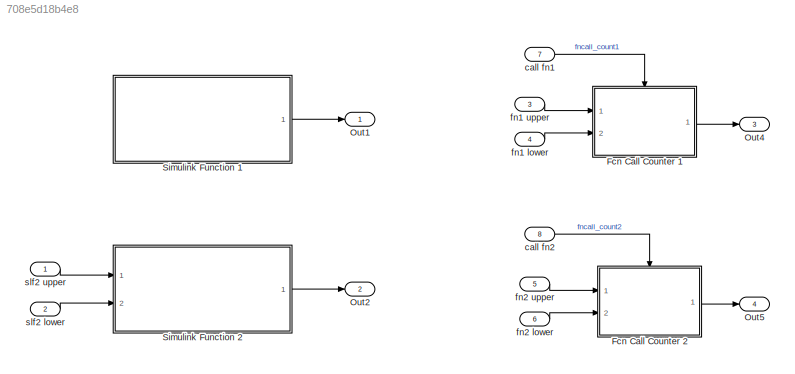
MODEL slx_708e5d18b4e8
KIND model
CONFIG AbsTol = auto
CONFIG FixedStep = 0.1
CONFIG MaxStep = auto
CONFIG MinStep = auto
CONFIG RelTol = 1e-3
CONFIG SampleTimeConstraint = Unconstrained
CONFIG Solver = FixedStepAuto
CONFIG SolverMode = Auto
CONFIG SolverName = FixedStepAuto
CONFIG StartTime = 0.0
CONFIG StopTime = 15
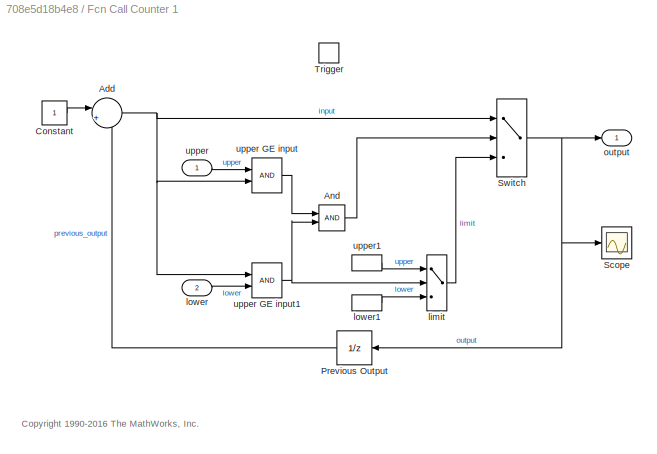
BLOCK [SubSystem] Fcn Call Counter 1
  Ports = [2, 1, 0, 1]
  RequestExecContextInheritance = off
  Variant = off
BLOCK [Switch] Fcn Call Counter 1/ limit
  Threshold = 0.5
BLOCK [Sum] Fcn Call Counter 1/Add
  IconShape = round
  InputSameDT = off
  Inputs = |++
  OutDataTypeStr = Inherit: Inherit via internal rule
  Ports = [2, 1]
  SaturateOnIntegerOverflow = off
BLOCK [Logic] Fcn Call Counter 1/And
  AttributesFormatString = %<Operator>
  IconShape = distinctive
  OutDataTypeStr = boolean
  Ports = [2, 1]
BLOCK [Constant] Fcn Call Counter 1/Constant
BLOCK [UnitDelay] Fcn Call Counter 1/Previous Output
  SampleTime = -1
BLOCK [Scope] Fcn Call Counter 1/Scope
  Ports = [1]
  ScopeSpecificationString = Simulink.scopes.TimeScopeBlockCfg('CurrentConfiguration', extmgr.ConfigurationSet(extmgr.Configuration('Core','General UI',true,'FigureColor',[0.156862745098039 0.156862745098039 0.156862745098039]),extmgr.Configuration('Core','Source UI',true),extmgr.Configuration('Sources','WiredSimulink',true,'DataLoggingSaveFormat','StructureWithTime','DataLoggingLimitDataPoints',true,'DataLoggingDecimation','...<+2784ch>
BLOCK [Switch] Fcn Call Counter 1/Switch
  Threshold = 0.5
BLOCK [TriggerPort] Fcn Call Counter 1/Trigger
  PortDimensions = 1
  Ports = []
  StatesWhenEnabling = held
  TriggerType = function-call
  VariantControl = Variant
BLOCK [Inport] Fcn Call Counter 1/lower
  IconDisplay = Port number
  Port = 2
BLOCK [InportShadow] Fcn Call Counter 1/lower1
  IconDisplay = Port number
  Port = 2
BLOCK [Outport] Fcn Call Counter 1/output
  IconDisplay = Port number
BLOCK [Inport] Fcn Call Counter 1/upper
  IconDisplay = Port number
BLOCK [RelationalOperator] Fcn Call Counter 1/upper GE input
  AttributesFormatString = \n
  OutDataTypeStr = boolean
  Ports = [2, 1]
  Priority = 0
BLOCK [RelationalOperator] Fcn Call Counter 1/upper GE input1
  AttributesFormatString = \n
  OutDataTypeStr = boolean
  Ports = [2, 1]
  Priority = 0
BLOCK [InportShadow] Fcn Call Counter 1/upper1
  IconDisplay = Port number
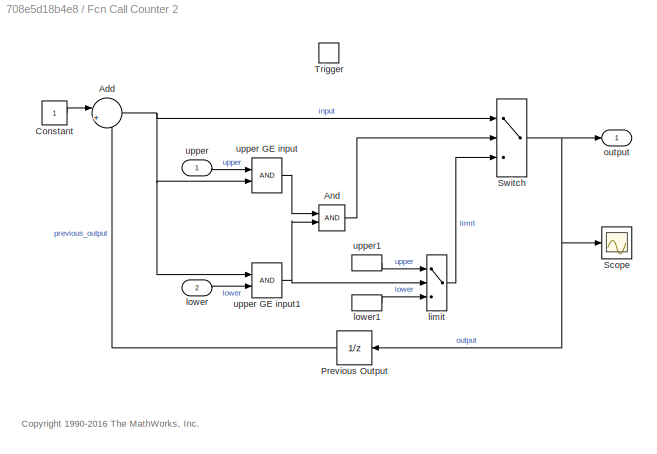
BLOCK [SubSystem] Fcn Call Counter 2
  Ports = [2, 1, 0, 1]
  RequestExecContextInheritance = off
  Variant = off
BLOCK [Switch] Fcn Call Counter 2/ limit
  Threshold = 0.5
BLOCK [Sum] Fcn Call Counter 2/Add
  IconShape = round
  InputSameDT = off
  Inputs = |++
  OutDataTypeStr = Inherit: Inherit via internal rule
  Ports = [2, 1]
  SaturateOnIntegerOverflow = off
BLOCK [Logic] Fcn Call Counter 2/And
  AttributesFormatString = %<Operator>
  IconShape = distinctive
  OutDataTypeStr = boolean
  Ports = [2, 1]
BLOCK [Constant] Fcn Call Counter 2/Constant
BLOCK [UnitDelay] Fcn Call Counter 2/Previous Output
  SampleTime = -1
BLOCK [Scope] Fcn Call Counter 2/Scope
  Ports = [1]
  ScopeSpecificationString = Simulink.scopes.TimeScopeBlockCfg('CurrentConfiguration', extmgr.ConfigurationSet(extmgr.Configuration('Core','General UI',true,'FigureColor',[0.156862745098039 0.156862745098039 0.156862745098039]),extmgr.Configuration('Core','Source UI',true),extmgr.Configuration('Sources','WiredSimulink',true,'DataLoggingSaveFormat','StructureWithTime','DataLoggingLimitDataPoints',true,'DataLoggingDecimation','...<+2823ch>
BLOCK [Switch] Fcn Call Counter 2/Switch
  Threshold = 0.5
BLOCK [TriggerPort] Fcn Call Counter 2/Trigger
  PortDimensions = 1
  Ports = []
  StatesWhenEnabling = held
  TriggerType = function-call
  VariantControl = Variant
BLOCK [Inport] Fcn Call Counter 2/lower
  IconDisplay = Port number
  Port = 2
BLOCK [InportShadow] Fcn Call Counter 2/lower1
  IconDisplay = Port number
  Port = 2
BLOCK [Outport] Fcn Call Counter 2/output
  IconDisplay = Port number
BLOCK [Inport] Fcn Call Counter 2/upper
  IconDisplay = Port number
BLOCK [RelationalOperator] Fcn Call Counter 2/upper GE input
  AttributesFormatString = \n
  OutDataTypeStr = boolean
  Ports = [2, 1]
  Priority = 0
BLOCK [RelationalOperator] Fcn Call Counter 2/upper GE input1
  AttributesFormatString = \n
  OutDataTypeStr = boolean
  Ports = [2, 1]
  Priority = 0
BLOCK [InportShadow] Fcn Call Counter 2/upper1
  IconDisplay = Port number
BLOCK [Outport] Out1
  IconDisplay = Port number
BLOCK [Outport] Out2
  IconDisplay = Port number
  Port = 2
BLOCK [Outport] Out4
  IconDisplay = Port number
  Port = 3
BLOCK [Outport] Out5
  IconDisplay = Port number
  Port = 4
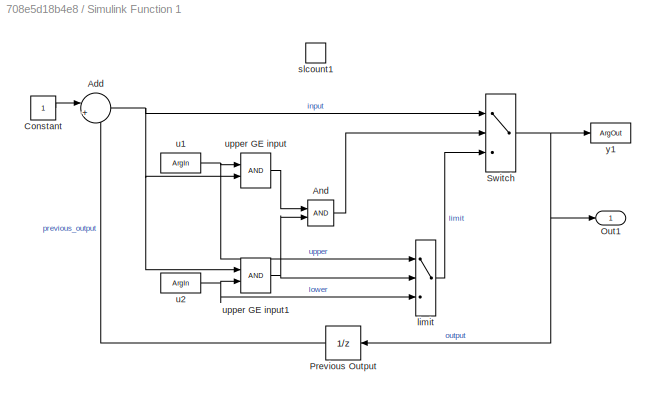
BLOCK [SubSystem] Simulink Function 1
  Ports = [0, 1, 0, 1]
  RequestExecContextInheritance = off
  TreatAsAtomicUnit = on
  Variant = off
BLOCK [Switch] Simulink Function 1/ limit
  Threshold = 0.5
BLOCK [Sum] Simulink Function 1/Add
  IconShape = round
  InputSameDT = off
  Inputs = |++
  OutDataTypeStr = Inherit: Inherit via internal rule
  Ports = [2, 1]
  SaturateOnIntegerOverflow = off
BLOCK [Logic] Simulink Function 1/And
  AttributesFormatString = %<Operator>
  IconShape = distinctive
  OutDataTypeStr = boolean
  Ports = [2, 1]
BLOCK [Constant] Simulink Function 1/Constant
BLOCK [Outport] Simulink Function 1/Out1
  IconDisplay = Port number
BLOCK [UnitDelay] Simulink Function 1/Previous Output
  SampleTime = -1
BLOCK [Switch] Simulink Function 1/Switch
  Threshold = 0.5
BLOCK [TriggerPort] Simulink Function 1/slcount1
  FunctionName = slcount1
  IsSimulinkFunction = on
  Ports = []
  StatesWhenEnabling = held
  TriggerType = function-call
  VariantControl = Variant
BLOCK [ArgIn] Simulink Function 1/u1
  ArgumentName = u1
  DisableCoverage = on
BLOCK [ArgIn] Simulink Function 1/u2
  ArgumentName = u2
  DisableCoverage = on
  Port = 2
BLOCK [RelationalOperator] Simulink Function 1/upper GE input
  AttributesFormatString = \n
  OutDataTypeStr = boolean
  Ports = [2, 1]
  Priority = 0
BLOCK [RelationalOperator] Simulink Function 1/upper GE input1
  AttributesFormatString = \n
  OutDataTypeStr = boolean
  Ports = [2, 1]
  Priority = 0
BLOCK [ArgOut] Simulink Function 1/y1
  ArgumentName = y1
  DisableCoverage = on
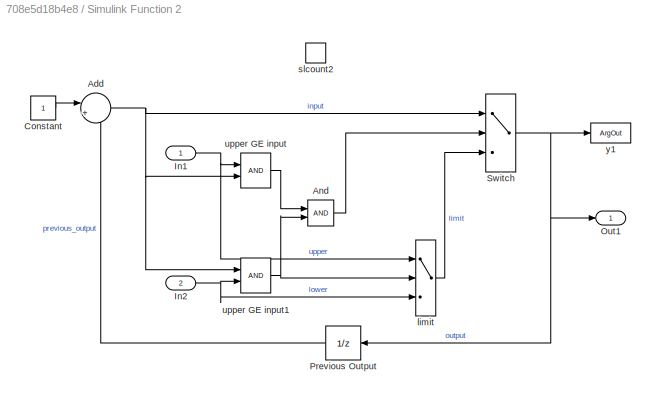
BLOCK [SubSystem] Simulink Function 2
  Ports = [2, 1, 0, 1]
  RequestExecContextInheritance = off
  TreatAsAtomicUnit = on
  Variant = off
BLOCK [Switch] Simulink Function 2/ limit
  Threshold = 0.5
BLOCK [Sum] Simulink Function 2/Add
  IconShape = round
  InputSameDT = off
  Inputs = |++
  OutDataTypeStr = Inherit: Inherit via internal rule
  Ports = [2, 1]
  SaturateOnIntegerOverflow = off
BLOCK [Logic] Simulink Function 2/And
  AttributesFormatString = %<Operator>
  IconShape = distinctive
  OutDataTypeStr = boolean
  Ports = [2, 1]
BLOCK [Constant] Simulink Function 2/Constant
BLOCK [Inport] Simulink Function 2/In1
  IconDisplay = Port number
BLOCK [Inport] Simulink Function 2/In2
  IconDisplay = Port number
  Port = 2
BLOCK [Outport] Simulink Function 2/Out1
  IconDisplay = Port number
BLOCK [UnitDelay] Simulink Function 2/Previous Output
  SampleTime = -1
BLOCK [Switch] Simulink Function 2/Switch
  Threshold = 0.5
BLOCK [TriggerPort] Simulink Function 2/slcount2
  FunctionName = slcount2
  IsSimulinkFunction = on
  Ports = []
  StatesWhenEnabling = held
  TriggerType = function-call
  VariantControl = Variant
BLOCK [RelationalOperator] Simulink Function 2/upper GE input
  AttributesFormatString = \n
  OutDataTypeStr = boolean
  Ports = [2, 1]
  Priority = 0
BLOCK [RelationalOperator] Simulink Function 2/upper GE input1
  AttributesFormatString = \n
  OutDataTypeStr = boolean
  Ports = [2, 1]
  Priority = 0
BLOCK [ArgOut] Simulink Function 2/y1
  ArgumentName = y1
  DisableCoverage = on
BLOCK [Inport] call fn1
  IconDisplay = Port number
  OutputFunctionCall = on
  Port = 7
  SampleTime = 0.1
BLOCK [Inport] call fn2
  IconDisplay = Port number
  OutputFunctionCall = on
  Port = 8
  SampleTime = 0.1
BLOCK [Inport] fn1 lower
  IconDisplay = Port number
  Port = 4
BLOCK [Inport] fn1 upper
  IconDisplay = Port number
  Port = 3
BLOCK [Inport] fn2 lower
  IconDisplay = Port number
  Port = 6
BLOCK [Inport] fn2 upper
  IconDisplay = Port number
  Port = 5
BLOCK [Inport] slf2 lower
  IconDisplay = Port number
  Port = 2
BLOCK [Inport] slf2 upper
  IconDisplay = Port number
ANNOTATION Fcn Call Counter 1: <copyright redacted>
ANNOTATION Fcn Call Counter 2: <copyright redacted>
LINE Fcn Call Counter 1/ limit:1 -> Fcn Call Counter 1/Switch:3
NET Fcn Call Counter 1/Add:1 -> Fcn Call Counter 1/Switch:1, Fcn Call Counter 1/upper GE input1:1, Fcn Call Counter 1/upper GE input:2
LINE Fcn Call Counter 1/And:1 -> Fcn Call Counter 1/Switch:2
LINE Fcn Call Counter 1/Constant:1 -> Fcn Call Counter 1/Add:1
LINE Fcn Call Counter 1/Previous Output:1 -> Fcn Call Counter 1/Add:2
NET Fcn Call Counter 1/Switch:1 -> Fcn Call Counter 1/Previous Output:1, Fcn Call Counter 1/Scope:1, Fcn Call Counter 1/output:1
LINE Fcn Call Counter 1/lower1:1 -> Fcn Call Counter 1/ limit:3
LINE Fcn Call Counter 1/lower:1 -> Fcn Call Counter 1/upper GE input1:2
NET Fcn Call Counter 1/upper GE input1:1 -> Fcn Call Counter 1/ limit:2, Fcn Call Counter 1/And:2
LINE Fcn Call Counter 1/upper GE input:1 -> Fcn Call Counter 1/And:1
LINE Fcn Call Counter 1/upper1:1 -> Fcn Call Counter 1/ limit:1
LINE Fcn Call Counter 1/upper:1 -> Fcn Call Counter 1/upper GE input:1
LINE Fcn Call Counter 1:1 -> Out4:1
LINE Fcn Call Counter 2/ limit:1 -> Fcn Call Counter 2/Switch:3
NET Fcn Call Counter 2/Add:1 -> Fcn Call Counter 2/Switch:1, Fcn Call Counter 2/upper GE input1:1, Fcn Call Counter 2/upper GE input:2
LINE Fcn Call Counter 2/And:1 -> Fcn Call Counter 2/Switch:2
LINE Fcn Call Counter 2/Constant:1 -> Fcn Call Counter 2/Add:1
LINE Fcn Call Counter 2/Previous Output:1 -> Fcn Call Counter 2/Add:2
NET Fcn Call Counter 2/Switch:1 -> Fcn Call Counter 2/Previous Output:1, Fcn Call Counter 2/Scope:1, Fcn Call Counter 2/output:1
LINE Fcn Call Counter 2/lower1:1 -> Fcn Call Counter 2/ limit:3
LINE Fcn Call Counter 2/lower:1 -> Fcn Call Counter 2/upper GE input1:2
NET Fcn Call Counter 2/upper GE input1:1 -> Fcn Call Counter 2/ limit:2, Fcn Call Counter 2/And:2
LINE Fcn Call Counter 2/upper GE input:1 -> Fcn Call Counter 2/And:1
LINE Fcn Call Counter 2/upper1:1 -> Fcn Call Counter 2/ limit:1
LINE Fcn Call Counter 2/upper:1 -> Fcn Call Counter 2/upper GE input:1
LINE Fcn Call Counter 2:1 -> Out5:1
LINE Simulink Function 1/ limit:1 -> Simulink Function 1/Switch:3
NET Simulink Function 1/Add:1 -> Simulink Function 1/Switch:1, Simulink Function 1/upper GE input1:1, Simulink Function 1/upper GE input:2
LINE Simulink Function 1/And:1 -> Simulink Function 1/Switch:2
LINE Simulink Function 1/Constant:1 -> Simulink Function 1/Add:1
LINE Simulink Function 1/Previous Output:1 -> Simulink Function 1/Add:2
NET Simulink Function 1/Switch:1 -> Simulink Function 1/Out1:1, Simulink Function 1/Previous Output:1, Simulink Function 1/y1:1
NET Simulink Function 1/u1:1 -> Simulink Function 1/ limit:1, Simulink Function 1/upper GE input:1
NET Simulink Function 1/u2:1 -> Simulink Function 1/ limit:3, Simulink Function 1/upper GE input1:2
NET Simulink Function 1/upper GE input1:1 -> Simulink Function 1/ limit:2, Simulink Function 1/And:2
LINE Simulink Function 1/upper GE input:1 -> Simulink Function 1/And:1
LINE Simulink Function 1:1 -> Out1:1
LINE Simulink Function 2/ limit:1 -> Simulink Function 2/Switch:3
NET Simulink Function 2/Add:1 -> Simulink Function 2/Switch:1, Simulink Function 2/upper GE input1:1, Simulink Function 2/upper GE input:2
LINE Simulink Function 2/And:1 -> Simulink Function 2/Switch:2
LINE Simulink Function 2/Constant:1 -> Simulink Function 2/Add:1
NET Simulink Function 2/In1:1 -> Simulink Function 2/ limit:1, Simulink Function 2/upper GE input:1
NET Simulink Function 2/In2:1 -> Simulink Function 2/ limit:3, Simulink Function 2/upper GE input1:2
LINE Simulink Function 2/Previous Output:1 -> Simulink Function 2/Add:2
NET Simulink Function 2/Switch:1 -> Simulink Function 2/Out1:1, Simulink Function 2/Previous Output:1, Simulink Function 2/y1:1
NET Simulink Function 2/upper GE input1:1 -> Simulink Function 2/ limit:2, Simulink Function 2/And:2
LINE Simulink Function 2/upper GE input:1 -> Simulink Function 2/And:1
LINE Simulink Function 2:1 -> Out2:1
LINE call fn1:1 -> Fcn Call Counter 1:trigger
LINE call fn2:1 -> Fcn Call Counter 2:trigger
LINE fn1 lower:1 -> Fcn Call Counter 1:2
LINE fn1 upper:1 -> Fcn Call Counter 1:1
LINE fn2 lower:1 -> Fcn Call Counter 2:2
LINE fn2 upper:1 -> Fcn Call Counter 2:1
LINE slf2 lower:1 -> Simulink Function 2:2
LINE slf2 upper:1 -> Simulink Function 2:1
note: NET lines group one-source signal fan-out (src -> all destinations, sorted); 1:1 wires keep LINE
CHART Function-call Driver states=5 transitions=5
  STATE_LABEL 'step_1\n% Calls Simulink Function 1 using args u1 and u2\n\nu1 = 5;\nu2 = 0;\n\nslcount1(u1,u2);'
  STATE_LABEL 'step_2\n% Calls Simulink Function 2. Inputs are defined\n% using inports in the test harness\n\nslcount2();'
  STATE_LABEL 'step_3\n% Calls  the first functional-call counter subsystem\n\nsend(fncall_count1);'
  STATE_LABEL 'step_4\n%  Calls the second function-call counter subsystem\n\nsend(fncall_count2);'
  STATE_LABEL 'end'
